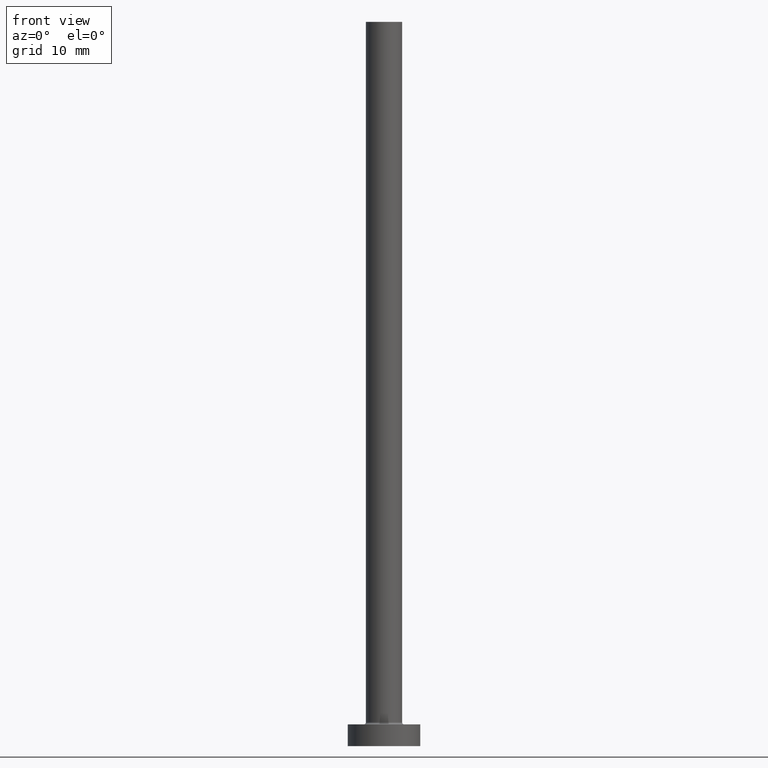
[diagram: clean part render]
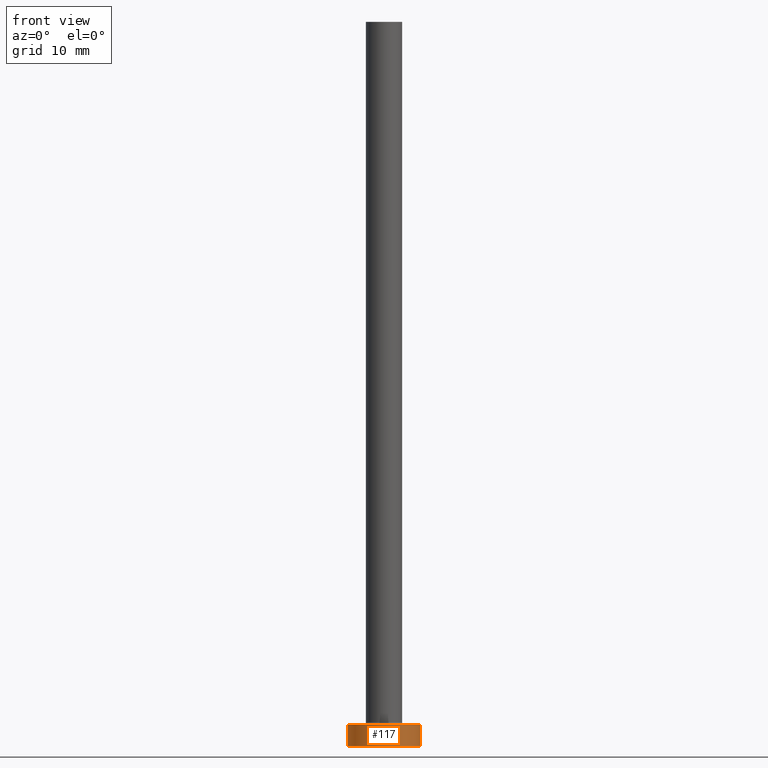
[diagram: same view with one face highlighted and labeled with its STEP entity id]
A machine part, front view. The second image highlights one B-rep face of the part: STEP entity #117.
In plain terms, the highlighted cylindrical surface (edge-blend (fillet) strip) has radius 5 mm, axis along (-0, -0, -1).
Its self-contained STEP definition (entity closure, byte-faithful):
#3 = AXIS2_PLACEMENT_3D ( 'NONE', #423, #246, #111 ) ;
#6 = CARTESIAN_POINT ( 'NONE',  ( 5.000000000000000000, 6.123233995736766282E-16, 0.000000000000000000 ) ) ;
#21 = LINE ( 'NONE', #350, #221 ) ;
#26 = VERTEX_POINT ( 'NONE', #64 ) ;
#29 = DIRECTION ( 'NONE',  ( 1.000000000000000000, 0.000000000000000000, 0.000000000000000000 ) ) ;
#37 = EDGE_CURVE ( 'NONE', #26, #366, #21, .T. ) ;
#39 = AXIS2_PLACEMENT_3D ( 'NONE', #416, #347, #29 ) ;
#45 = ORIENTED_EDGE ( 'NONE', *, *, #79, .T. ) ;
#49 = CIRCLE ( 'NONE', #39, 5.000000000000000000 ) ;
#54 = EDGE_CURVE ( 'NONE', #440, #26, #49, .T. ) ;
#64 = CARTESIAN_POINT ( 'NONE',  ( 5.000000000000000000, 6.123233995736766282E-16, 3.000000000000000000 ) ) ;
#79 = EDGE_CURVE ( 'NONE', #440, #406, #105, .T. ) ;
#97 = DIRECTION ( 'NONE',  ( -1.000000000000000000, 0.000000000000000000, 0.000000000000000000 ) ) ;
#105 = LINE ( 'NONE', #308, #346 ) ;
#111 = DIRECTION ( 'NONE',  ( 1.000000000000000000, 0.000000000000000000, 0.000000000000000000 ) ) ;
#117 = ADVANCED_FACE ( 'NONE', ( #306 ), #449, .T. ) ;
#160 = EDGE_CURVE ( 'NONE', #406, #366, #183, .T. ) ;
#183 = CIRCLE ( 'NONE', #3, 5.000000000000000000 ) ;
#192 = ORIENTED_EDGE ( 'NONE', *, *, #54, .F. ) ;
#221 = VECTOR ( 'NONE', #412, 1000.000000000000000 ) ;
#232 = CARTESIAN_POINT ( 'NONE',  ( -5.000000000000000000, 0.000000000000000000, 3.000000000000000000 ) ) ;
#233 = ORIENTED_EDGE ( 'NONE', *, *, #160, .T. ) ;
#243 = DIRECTION ( 'NONE',  ( -0.000000000000000000, -0.000000000000000000, -1.000000000000000000 ) ) ;
#246 = DIRECTION ( 'NONE',  ( 0.000000000000000000, 0.000000000000000000, 1.000000000000000000 ) ) ;
#269 = CARTESIAN_POINT ( 'NONE',  ( 0.000000000000000000, 0.000000000000000000, 3.000000000000000000 ) ) ;
#277 = AXIS2_PLACEMENT_3D ( 'NONE', #269, #414, #97 ) ;
#293 = CARTESIAN_POINT ( 'NONE',  ( -5.000000000000000000, 0.000000000000000000, 0.000000000000000000 ) ) ;
#306 = FACE_OUTER_BOUND ( 'NONE', #314, .T. ) ;
#308 = CARTESIAN_POINT ( 'NONE',  ( -5.000000000000000000, 0.000000000000000000, 3.000000000000000000 ) ) ;
#314 = EDGE_LOOP ( 'NONE', ( #460, #192, #45, #233 ) ) ;
#346 = VECTOR ( 'NONE', #243, 1000.000000000000000 ) ;
#347 = DIRECTION ( 'NONE',  ( 0.000000000000000000, 0.000000000000000000, 1.000000000000000000 ) ) ;
#350 = CARTESIAN_POINT ( 'NONE',  ( 5.000000000000000000, 6.123233995736766282E-16, 3.000000000000000000 ) ) ;
#366 = VERTEX_POINT ( 'NONE', #6 ) ;
#406 = VERTEX_POINT ( 'NONE', #293 ) ;
#412 = DIRECTION ( 'NONE',  ( -0.000000000000000000, -0.000000000000000000, -1.000000000000000000 ) ) ;
#414 = DIRECTION ( 'NONE',  ( -0.000000000000000000, -0.000000000000000000, -1.000000000000000000 ) ) ;
#416 = CARTESIAN_POINT ( 'NONE',  ( 0.000000000000000000, 0.000000000000000000, 3.000000000000000000 ) ) ;
#423 = CARTESIAN_POINT ( 'NONE',  ( 0.000000000000000000, 0.000000000000000000, 0.000000000000000000 ) ) ;
#440 = VERTEX_POINT ( 'NONE', #232 ) ;
#449 = CYLINDRICAL_SURFACE ( 'NONE', #277, 5.000000000000000000 ) ;
#460 = ORIENTED_EDGE ( 'NONE', *, *, #37, .F. ) ;